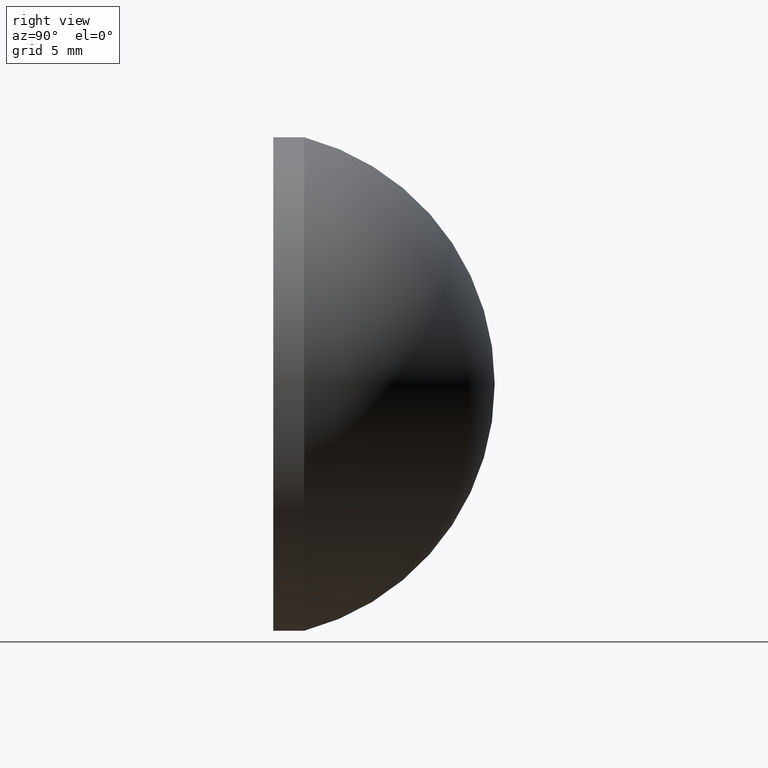
[diagram: clean part render]
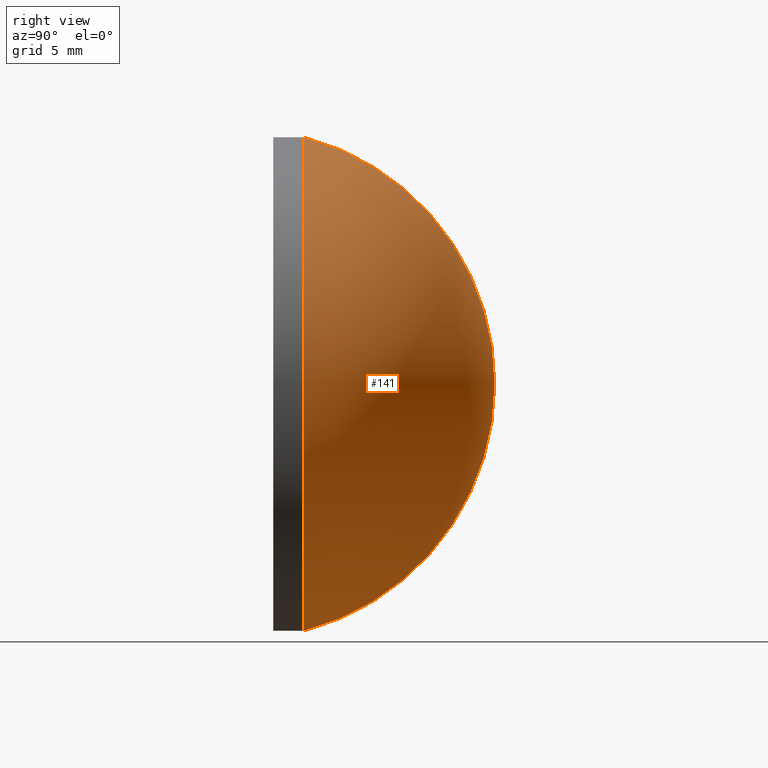
[diagram: same view with one face highlighted and labeled with its STEP entity id]
A machine part, right view. The second image highlights one B-rep face of the part: STEP entity #141.
In plain terms, the highlighted toroidal blend (fillet) surface has major radius 0 mm and minor (blend) radius 20.67 mm.
Its self-contained STEP definition (entity closure, byte-faithful):
#10 = EDGE_LOOP ( 'NONE', ( #135, #132, #56 ) ) ;
#15 = DIRECTION ( 'NONE',  ( 0.000000000000000000, 0.000000000000000000, 1.000000000000000000 ) ) ;
#27 = EDGE_CURVE ( 'NONE', #72, #93, #143, .T. ) ;
#30 = CARTESIAN_POINT ( 'NONE',  ( 0.000000000000000000, 2.499999999999996447, 20.00000000000000355 ) ) ;
#31 = DIRECTION ( 'NONE',  ( -0.000000000000000000, 1.000000000000000000, -0.000000000000000000 ) ) ;
#32 = DIRECTION ( 'NONE',  ( 1.000000000000000000, 0.000000000000000000, 1.224646799147353207E-16 ) ) ;
#56 = ORIENTED_EDGE ( 'NONE', *, *, #187, .F. ) ;
#58 = AXIS2_PLACEMENT_3D ( 'NONE', #122, #165, #168 ) ;
#59 = FACE_OUTER_BOUND ( 'NONE', #10, .T. ) ;
#62 = AXIS2_PLACEMENT_3D ( 'NONE', #124, #32, #164 ) ;
#63 = CARTESIAN_POINT ( 'NONE',  ( 0.000000000000000000, 17.94999999999999929, 0.000000000000000000 ) ) ;
#72 = VERTEX_POINT ( 'NONE', #30 ) ;
#76 = DIRECTION ( 'NONE',  ( -0.000000000000000000, 1.000000000000000000, -0.000000000000000000 ) ) ;
#78 = CARTESIAN_POINT ( 'NONE',  ( 2.449293598294706513E-15, 2.499999999999996447, -20.00000000000000355 ) ) ;
#84 = EDGE_CURVE ( 'NONE', #93, #182, #147, .T. ) ;
#87 = DIRECTION ( 'NONE',  ( 0.000000000000000000, 0.000000000000000000, 1.000000000000000000 ) ) ;
#89 = AXIS2_PLACEMENT_3D ( 'NONE', #100, #76, #87 ) ;
#93 = VERTEX_POINT ( 'NONE', #78 ) ;
#100 = CARTESIAN_POINT ( 'NONE',  ( 0.000000000000000000, 2.499999999999996891, 0.000000000000000000 ) ) ;
#103 = AXIS2_PLACEMENT_3D ( 'NONE', #199, #31, #15 ) ;
#122 = CARTESIAN_POINT ( 'NONE',  ( 0.000000000000000000, -2.719999999996218332, -1.249999708081983574E-05 ) ) ;
#124 = CARTESIAN_POINT ( 'NONE',  ( -1.530808141437727086E-21, -2.719999999996218332, 1.249999708081983574E-05 ) ) ;
#132 = ORIENTED_EDGE ( 'NONE', *, *, #84, .T. ) ;
#135 = ORIENTED_EDGE ( 'NONE', *, *, #27, .T. ) ;
#141 = ADVANCED_FACE ( 'NONE', ( #59 ), #192, .T. ) ;
#143 = CIRCLE ( 'NONE', #89, 20.00000000000000000 ) ;
#146 = CIRCLE ( 'NONE', #58, 20.67000000000000171 ) ;
#147 = CIRCLE ( 'NONE', #62, 20.67000000000000171 ) ;
#164 = DIRECTION ( 'NONE',  ( 1.224646799147353207E-16, 0.000000000000000000, -1.000000000000000000 ) ) ;
#165 = DIRECTION ( 'NONE',  ( -1.000000000000000000, 0.000000000000000000, 0.000000000000000000 ) ) ;
#168 = DIRECTION ( 'NONE',  ( 0.000000000000000000, 0.000000000000000000, 1.000000000000000000 ) ) ;
#182 = VERTEX_POINT ( 'NONE', #63 ) ;
#187 = EDGE_CURVE ( 'NONE', #72, #182, #146, .T. ) ;
#192 = TOROIDAL_SURFACE ( 'NONE', #103, -1.249999708081983574E-05, 20.67000000000000171 ) ;
#199 = CARTESIAN_POINT ( 'NONE',  ( 0.000000000000000000, -2.719999999996218332, 0.000000000000000000 ) ) ;